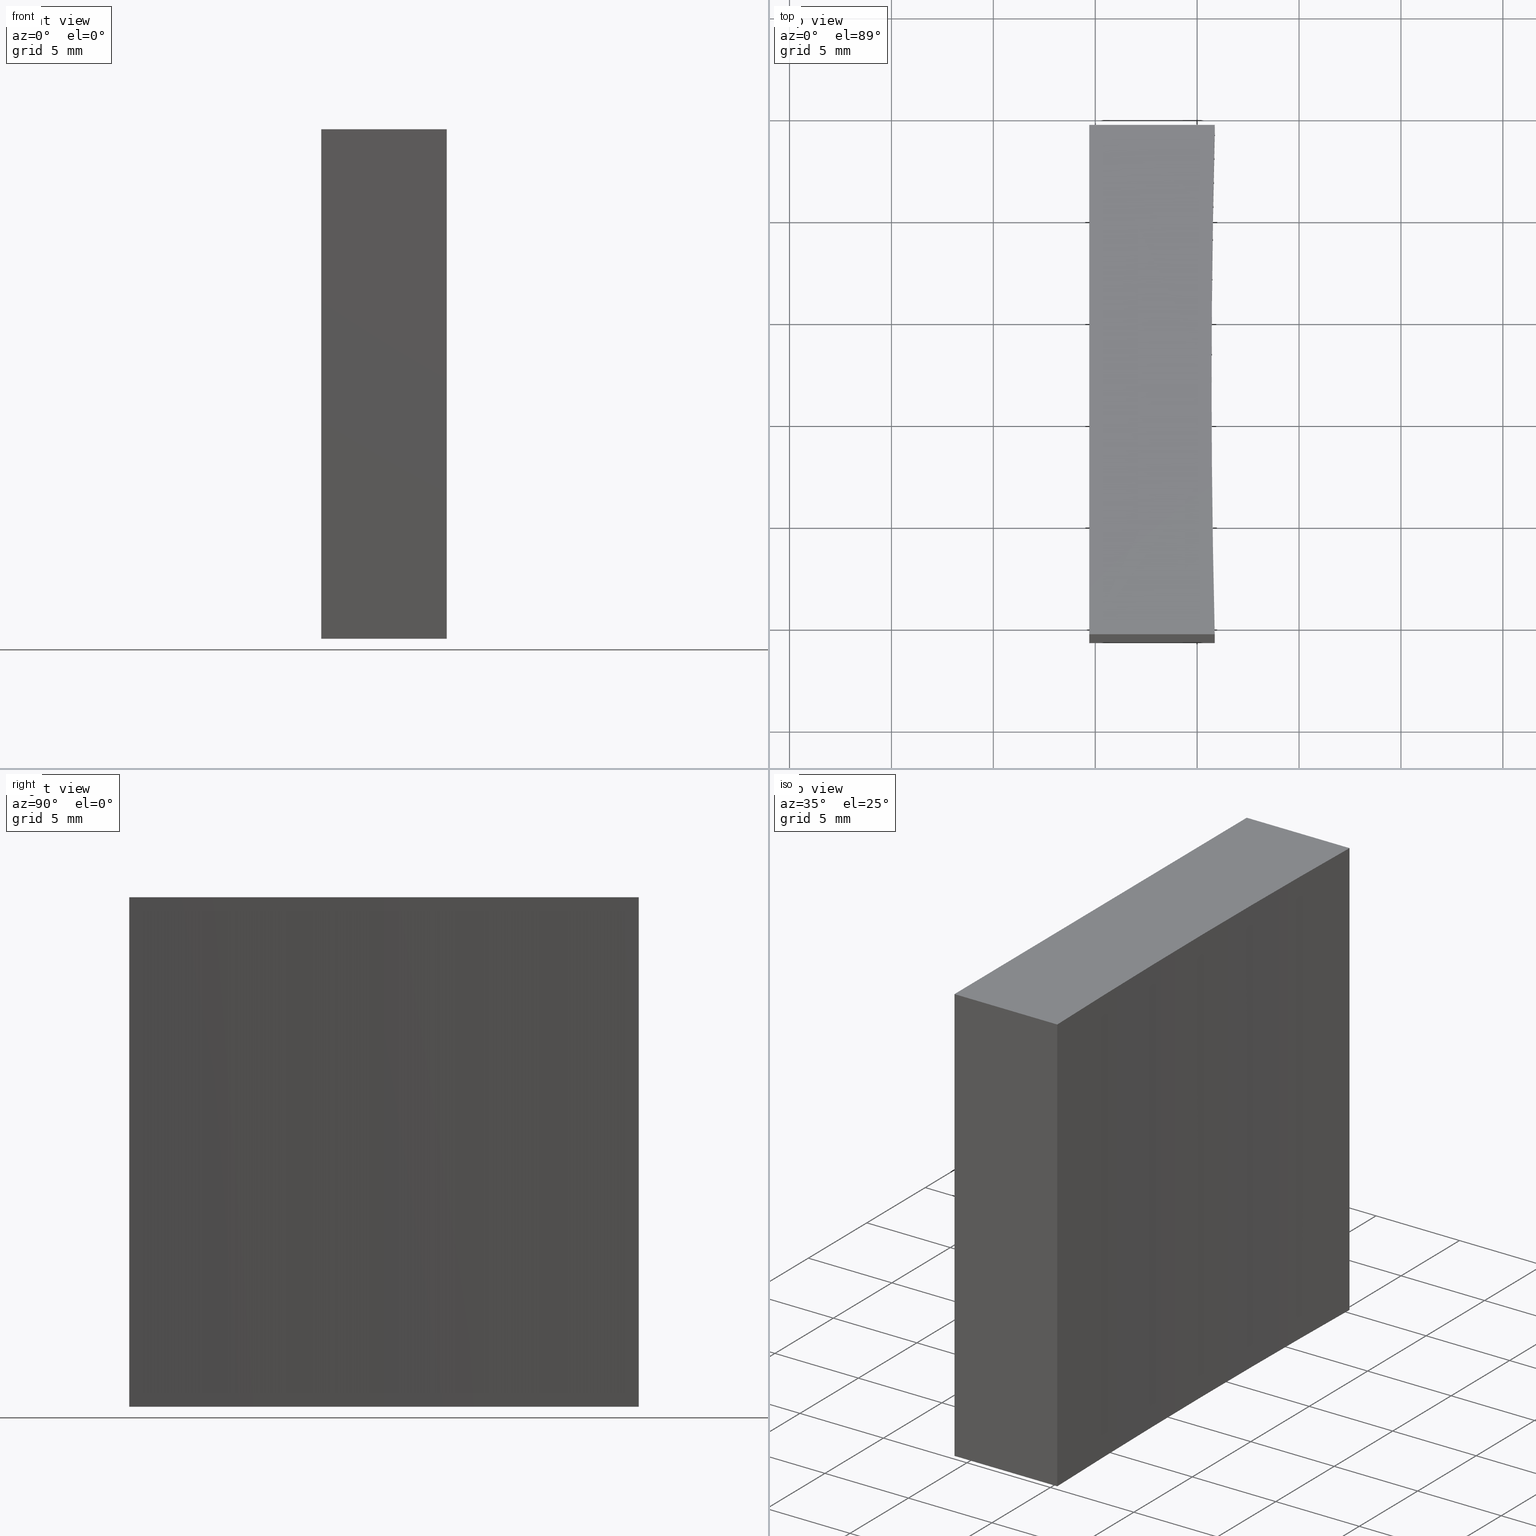
[diagram: canonical four-view strip — front | top / right | iso, engineering-drawing reading convention]
A machine part, canonical four-view strip (front | top / right | iso — engineering-drawing reading convention). The complete STEP part file that produces these views, byte-faithful:
ISO-10303-21;
HEADER;
FILE_DESCRIPTION (( 'STEP AP214' ),
    '1' );
FILE_NAME ('280021.STEP',
    '2019-08-08T03:10:16',
    ( '' ),
    ( '' ),
    'SwSTEP 2.0',
    'SolidWorks 2016',
    '' );
FILE_SCHEMA (( 'AUTOMOTIVE_DESIGN' ));
ENDSEC;

DATA;
#1 = APPLICATION_CONTEXT ( 'automotive_design' ) ;
#2 = LINE ( 'NONE', #37, #69 ) ;
#3 = AXIS2_PLACEMENT_3D ( 'NONE', #155, #238, #158 ) ;
#4 = ORIENTED_EDGE ( 'NONE', *, *, #98, .T. ) ;
#5 = VECTOR ( 'NONE', #186, 1000.000000000000000 ) ;
#6 = VECTOR ( 'NONE', #162, 1000.000000000000000 ) ;
#7 = EDGE_CURVE ( 'NONE', #27, #182, #105, .T. ) ;
#8 = ORIENTED_EDGE ( 'NONE', *, *, #184, .F. ) ;
#9 = STYLED_ITEM ( 'NONE', ( #166 ), #22 ) ;
#10 = LINE ( 'NONE', #106, #112 ) ;
#11 = CARTESIAN_POINT ( 'NONE',  ( 284.7071356312820900, 79.35792926776707600, 25.00000000000000000 ) ) ;
#12 = DIRECTION ( 'NONE',  ( -1.000000000000000000, -4.621214570823221300E-014, 0.0000000000000000000 ) ) ;
#13 = UNCERTAINTY_MEASURE_WITH_UNIT (LENGTH_MEASURE( 1.000000000000000100E-005 ), #43, 'distance_accuracy_value', 'NONE');
#14 = EDGE_CURVE ( 'NONE', #182, #213, #148, .T. ) ;
#15 = SURFACE_STYLE_USAGE ( .BOTH. , #70 ) ;
#16 = SURFACE_STYLE_FILL_AREA ( #127 ) ;
#17 = CARTESIAN_POINT ( 'NONE',  ( 790.7071356197045600, 66.85792926776608200, 25.00000000000000000 ) ) ;
#18 = DIRECTION ( 'NONE',  ( -1.000000000000000000, 0.0000000000000000000, 0.0000000000000000000 ) ) ;
#19 = ORIENTED_EDGE ( 'NONE', *, *, #233, .F. ) ;
#20 = CARTESIAN_POINT ( 'NONE',  ( 290.8634100413992800, 54.35792926776753800, 25.00000000000000000 ) ) ;
#21 = STYLED_ITEM ( 'NONE', ( #198 ), #48 ) ;
#22 = ADVANCED_BREP_SHAPE_REPRESENTATION ( '280021', ( #48, #203 ), #90 ) ;
#23 = ORIENTED_EDGE ( 'NONE', *, *, #56, .T. ) ;
#24 = VERTEX_POINT ( 'NONE', #170 ) ;
#25 = EDGE_CURVE ( 'NONE', #135, #199, #120, .T. ) ;
#26 = COLOUR_RGB ( '',1.000000000000000000, 1.000000000000000000, 1.000000000000000000 ) ;
#27 = VERTEX_POINT ( 'NONE', #104 ) ;
#28 = PRODUCT_DEFINITION_FORMATION_WITH_SPECIFIED_SOURCE ( '�κ�', '', #132, .NOT_KNOWN. ) ;
#29 = LINE ( 'NONE', #145, #97 ) ;
#30 = VERTEX_POINT ( 'NONE', #11 ) ;
#31 = VERTEX_POINT ( 'NONE', #71 ) ;
#32 = CARTESIAN_POINT ( 'NONE',  ( 290.8634100413993300, 79.35792926776707600, 25.00000000000000000 ) ) ;
#33 = CARTESIAN_POINT ( 'NONE',  ( 284.7071356312820900, 79.35792926776707600, 25.00000000000000000 ) ) ;
#34 = DIRECTION ( 'NONE',  ( -1.000000000000000000, -0.0000000000000000000, -0.0000000000000000000 ) ) ;
#35 = ADVANCED_FACE ( 'NONE', ( #175 ), #171, .F. ) ;
#36 = CYLINDRICAL_SURFACE ( 'NONE', #44, 500.0000000000001100 ) ;
#37 = CARTESIAN_POINT ( 'NONE',  ( 284.7071356312820900, 54.35792926776707600, 25.00000000000000000 ) ) ;
#38 = ORIENTED_EDGE ( 'NONE', *, *, #233, .T. ) ;
#39 = ADVANCED_FACE ( 'NONE', ( #206 ), #172, .T. ) ;
#40 = CARTESIAN_POINT ( 'NONE',  ( 284.7071356312820900, 66.85792926776707600, 0.0000000000000000000 ) ) ;
#41 = FILL_AREA_STYLE_COLOUR ( '', #26 ) ;
#42 = DIRECTION ( 'NONE',  ( -0.0000000000000000000, -0.0000000000000000000, -1.000000000000000000 ) ) ;
#43 =( LENGTH_UNIT ( ) NAMED_UNIT ( * ) SI_UNIT ( .MILLI., .METRE. ) );
#44 = AXIS2_PLACEMENT_3D ( 'NONE', #237, #129, #107 ) ;
#45 = CARTESIAN_POINT ( 'NONE',  ( 290.8634100413992800, 54.35792926776753800, 0.0000000000000000000 ) ) ;
#46 = APPLICATION_PROTOCOL_DEFINITION ( 'draft international standard', 'automotive_design', 1998, #1 ) ;
#47 = EDGE_LOOP ( 'NONE', ( #207, #8, #51, #23 ) ) ;
#48 = MANIFOLD_SOLID_BREP ( '͹̨-����1', #204 ) ;
#49 = EDGE_CURVE ( 'NONE', #199, #102, #134, .T. ) ;
#50 = PRODUCT_RELATED_PRODUCT_CATEGORY ( 'part', '', ( #132 ) ) ;
#51 = ORIENTED_EDGE ( 'NONE', *, *, #92, .F. ) ;
#52 = PRESENTATION_LAYER_ASSIGNMENT (  '', '', ( #9 ) ) ;
#53 = EDGE_CURVE ( 'NONE', #102, #30, #117, .T. ) ;
#54 = ORIENTED_EDGE ( 'NONE', *, *, #14, .F. ) ;
#55 = CARTESIAN_POINT ( 'NONE',  ( 290.8634100413992800, 54.35792926776736100, 0.0000000000000000000 ) ) ;
#56 = EDGE_CURVE ( 'NONE', #31, #27, #2, .T. ) ;
#57 = DIRECTION ( 'NONE',  ( -0.0000000000000000000, -0.0000000000000000000, -1.000000000000000000 ) ) ;
#58 = LINE ( 'NONE', #40, #159 ) ;
#59 = ADVANCED_FACE ( 'NONE', ( #100 ), #236, .F. ) ;
#60 = DIRECTION ( 'NONE',  ( -0.0000000000000000000, -0.0000000000000000000, -1.000000000000000000 ) ) ;
#61 = CARTESIAN_POINT ( 'NONE',  ( 790.7071356197045600, 66.85792926776608200, 25.00000000000000000 ) ) ;
#62 = SURFACE_SIDE_STYLE ('',( #212 ) ) ;
#63 = ORIENTED_EDGE ( 'NONE', *, *, #98, .F. ) ;
#64 = CARTESIAN_POINT ( 'NONE',  ( 290.7071356197043900, 66.85792926776608200, 25.00000000000000000 ) ) ;
#65 = UNCERTAINTY_MEASURE_WITH_UNIT (LENGTH_MEASURE( 1.000000000000000100E-005 ), #146, 'distance_accuracy_value', 'NONE');
#66 = SURFACE_STYLE_USAGE ( .BOTH. , #62 ) ;
#67 = ORIENTED_EDGE ( 'NONE', *, *, #223, .F. ) ;
#68 = FACE_OUTER_BOUND ( 'NONE', #99, .T. ) ;
#69 = VECTOR ( 'NONE', #57, 1000.000000000000000 ) ;
#70 = SURFACE_SIDE_STYLE ('',( #16 ) ) ;
#71 = CARTESIAN_POINT ( 'NONE',  ( 284.7071356312820900, 54.35792926776707600, 25.00000000000000000 ) ) ;
#72 = VECTOR ( 'NONE', #34, 1000.000000000000000 ) ;
#73 = CARTESIAN_POINT ( 'NONE',  ( 790.7071356197045600, 66.85792926776608200, 25.00000000000000000 ) ) ;
#74 = CARTESIAN_POINT ( 'NONE',  ( 284.7071356312820900, 79.35792926776707600, 25.00000000000000000 ) ) ;
#75 = AXIS2_PLACEMENT_3D ( 'NONE', #33, #140, #111 ) ;
#76 = EDGE_CURVE ( 'NONE', #24, #156, #101, .T. ) ;
#77 = DIRECTION ( 'NONE',  ( -0.0000000000000000000, -1.000000000000000000, -0.0000000000000000000 ) ) ;
#78 = ORIENTED_EDGE ( 'NONE', *, *, #197, .F. ) ;
#79 = DIRECTION ( 'NONE',  ( -1.000000000000000000, -0.0000000000000000000, -0.0000000000000000000 ) ) ;
#80 = ADVANCED_FACE ( 'NONE', ( #108 ), #36, .F. ) ;
#81 = CARTESIAN_POINT ( 'NONE',  ( 0.0000000000000000000, 0.0000000000000000000, 0.0000000000000000000 ) ) ;
#82 = PRESENTATION_LAYER_ASSIGNMENT (  '', '', ( #21 ) ) ;
#83 = DIRECTION ( 'NONE',  ( -0.0000000000000000000, -0.0000000000000000000, -1.000000000000000000 ) ) ;
#84 = EDGE_LOOP ( 'NONE', ( #235, #38, #122, #189 ) ) ;
#85 = AXIS2_PLACEMENT_3D ( 'NONE', #61, #142, #18 ) ;
#86 = EDGE_CURVE ( 'NONE', #30, #31, #149, .T. ) ;
#87 = FACE_OUTER_BOUND ( 'NONE', #202, .T. ) ;
#88 = DIRECTION ( 'NONE',  ( -0.0000000000000000000, -0.0000000000000000000, -1.000000000000000000 ) ) ;
#89 = DIRECTION ( 'NONE',  ( 1.000000000000000000, 0.0000000000000000000, 0.0000000000000000000 ) ) ;
#90 =( GEOMETRIC_REPRESENTATION_CONTEXT ( 3 ) GLOBAL_UNCERTAINTY_ASSIGNED_CONTEXT ( ( #65 ) ) GLOBAL_UNIT_ASSIGNED_CONTEXT ( ( #146, #144, #94 ) ) REPRESENTATION_CONTEXT ( 'NONE', 'WORKASPACE' ) );
#91 = DIRECTION ( 'NONE',  ( 0.0000000000000000000, 0.0000000000000000000, 1.000000000000000000 ) ) ;
#92 = EDGE_CURVE ( 'NONE', #31, #135, #10, .T. ) ;
#93 = CIRCLE ( 'NONE', #187, 500.0000000000001100 ) ;
#94 =( NAMED_UNIT ( * ) SI_UNIT ( $, .STERADIAN. ) SOLID_ANGLE_UNIT ( ) );
#95 = ADVANCED_FACE ( 'NONE', ( #68 ), #143, .F. ) ;
#96 = PRODUCT_DEFINITION ( 'δ֪', '', #28, #225 ) ;
#97 = VECTOR ( 'NONE', #42, 1000.000000000000000 ) ;
#98 = EDGE_CURVE ( 'NONE', #156, #27, #58, .T. ) ;
#99 = EDGE_LOOP ( 'NONE', ( #150, #63, #128, #78, #54 ) ) ;
#100 = FACE_OUTER_BOUND ( 'NONE', #167, .T. ) ;
#101 = LINE ( 'NONE', #190, #72 ) ;
#102 = VERTEX_POINT ( 'NONE', #32 ) ;
#103 =( NAMED_UNIT ( * ) PLANE_ANGLE_UNIT ( ) SI_UNIT ( $, .RADIAN. ) );
#104 = CARTESIAN_POINT ( 'NONE',  ( 284.7071356312820900, 54.35792926776707600, 0.0000000000000000000 ) ) ;
#105 = LINE ( 'NONE', #55, #5 ) ;
#106 = CARTESIAN_POINT ( 'NONE',  ( 290.8634100413992800, 54.35792926776736100, 25.00000000000000000 ) ) ;
#107 = DIRECTION ( 'NONE',  ( -1.000000000000000000, 0.0000000000000000000, 0.0000000000000000000 ) ) ;
#108 = FACE_OUTER_BOUND ( 'NONE', #131, .T. ) ;
#109 = ORIENTED_EDGE ( 'NONE', *, *, #86, .F. ) ;
#110 = PLANE ( 'NONE',  #3 ) ;
#111 = DIRECTION ( 'NONE',  ( 0.0000000000000000000, -0.0000000000000000000, -1.000000000000000000 ) ) ;
#112 = VECTOR ( 'NONE', #230, 1000.000000000000000 ) ;
#113 = ORIENTED_EDGE ( 'NONE', *, *, #53, .F. ) ;
#114 = CARTESIAN_POINT ( 'NONE',  ( 290.7071356197043900, 66.85792926776608200, 25.00000000000000000 ) ) ;
#115 =( GEOMETRIC_REPRESENTATION_CONTEXT ( 3 ) GLOBAL_UNCERTAINTY_ASSIGNED_CONTEXT ( ( #13 ) ) GLOBAL_UNIT_ASSIGNED_CONTEXT ( ( #43, #160, #219 ) ) REPRESENTATION_CONTEXT ( 'NONE', 'WORKASPACE' ) );
#116 = DIRECTION ( 'NONE',  ( 0.0000000000000000000, 0.0000000000000000000, 1.000000000000000000 ) ) ;
#117 = LINE ( 'NONE', #74, #224 ) ;
#118 = ORIENTED_EDGE ( 'NONE', *, *, #184, .T. ) ;
#119 = COLOUR_RGB ( '',1.000000000000000000, 1.000000000000000000, 1.000000000000000000 ) ;
#120 = CIRCLE ( 'NONE', #228, 500.0000000000001100 ) ;
#121 = VECTOR ( 'NONE', #83, 1000.000000000000000 ) ;
#122 = ORIENTED_EDGE ( 'NONE', *, *, #197, .T. ) ;
#123 =( NAMED_UNIT ( * ) SI_UNIT ( $, .STERADIAN. ) SOLID_ANGLE_UNIT ( ) );
#124 = VECTOR ( 'NONE', #215, 1000.000000000000000 ) ;
#125 = ORIENTED_EDGE ( 'NONE', *, *, #210, .T. ) ;
#126 = AXIS2_PLACEMENT_3D ( 'NONE', #174, #232, #157 ) ;
#127 = FILL_AREA_STYLE ('',( #154 ) ) ;
#128 = ORIENTED_EDGE ( 'NONE', *, *, #76, .F. ) ;
#129 = DIRECTION ( 'NONE',  ( -0.0000000000000000000, -0.0000000000000000000, -1.000000000000000000 ) ) ;
#130 = ADVANCED_FACE ( 'NONE', ( #181 ), #201, .F. ) ;
#131 = EDGE_LOOP ( 'NONE', ( #19, #221, #118, #141 ) ) ;
#132 = PRODUCT ( '280021', '280021', '', ( #196 ) ) ;
#133 = ORIENTED_EDGE ( 'NONE', *, *, #49, .T. ) ;
#134 = CIRCLE ( 'NONE', #208, 500.0000000000001100 ) ;
#135 = VERTEX_POINT ( 'NONE', #216 ) ;
#136 =( GEOMETRIC_REPRESENTATION_CONTEXT ( 3 ) GLOBAL_UNCERTAINTY_ASSIGNED_CONTEXT ( ( #231 ) ) GLOBAL_UNIT_ASSIGNED_CONTEXT ( ( #183, #103, #123 ) ) REPRESENTATION_CONTEXT ( 'NONE', 'WORKASPACE' ) );
#137 = DIRECTION ( 'NONE',  ( -0.0000000000000000000, -0.0000000000000000000, -1.000000000000000000 ) ) ;
#138 = AXIS2_PLACEMENT_3D ( 'NONE', #73, #91, #211 ) ;
#139 = LINE ( 'NONE', #220, #121 ) ;
#140 = DIRECTION ( 'NONE',  ( 0.0000000000000000000, -1.000000000000000000, 0.0000000000000000000 ) ) ;
#141 = ORIENTED_EDGE ( 'NONE', *, *, #14, .T. ) ;
#142 = DIRECTION ( 'NONE',  ( -0.0000000000000000000, -0.0000000000000000000, -1.000000000000000000 ) ) ;
#143 = PLANE ( 'NONE',  #126 ) ;
#144 =( NAMED_UNIT ( * ) PLANE_ANGLE_UNIT ( ) SI_UNIT ( $, .RADIAN. ) );
#145 = CARTESIAN_POINT ( 'NONE',  ( 290.8634100413993300, 79.35792926776707600, 25.00000000000000000 ) ) ;
#146 =( LENGTH_UNIT ( ) NAMED_UNIT ( * ) SI_UNIT ( .MILLI., .METRE. ) );
#147 = DIRECTION ( 'NONE',  ( -0.0000000000000000000, -0.0000000000000000000, -1.000000000000000000 ) ) ;
#148 = CIRCLE ( 'NONE', #151, 500.0000000000001100 ) ;
#149 = LINE ( 'NONE', #188, #124 ) ;
#150 = ORIENTED_EDGE ( 'NONE', *, *, #7, .F. ) ;
#151 = AXIS2_PLACEMENT_3D ( 'NONE', #209, #88, #205 ) ;
#152 = SHAPE_DEFINITION_REPRESENTATION ( #179, #22 ) ;
#153 = ORIENTED_EDGE ( 'NONE', *, *, #76, .T. ) ;
#154 = FILL_AREA_STYLE_COLOUR ( '', #119 ) ;
#155 = CARTESIAN_POINT ( 'NONE',  ( 284.7071356312820900, 66.85792926776707600, 25.00000000000000000 ) ) ;
#156 = VERTEX_POINT ( 'NONE', #193 ) ;
#157 = DIRECTION ( 'NONE',  ( 1.000000000000000000, 0.0000000000000000000, -0.0000000000000000000 ) ) ;
#158 = DIRECTION ( 'NONE',  ( 0.0000000000000000000, 0.0000000000000000000, -1.000000000000000000 ) ) ;
#159 = VECTOR ( 'NONE', #77, 1000.000000000000000 ) ;
#160 =( NAMED_UNIT ( * ) PLANE_ANGLE_UNIT ( ) SI_UNIT ( $, .RADIAN. ) );
#161 = ORIENTED_EDGE ( 'NONE', *, *, #223, .T. ) ;
#162 = DIRECTION ( 'NONE',  ( -0.0000000000000000000, -0.0000000000000000000, -1.000000000000000000 ) ) ;
#163 = APPLICATION_PROTOCOL_DEFINITION ( 'draft international standard', 'automotive_design', 1998, #239 ) ;
#164 = ADVANCED_FACE ( 'NONE', ( #87 ), #110, .F. ) ;
#165 = CARTESIAN_POINT ( 'NONE',  ( 790.7071356197045600, 66.85792926776608200, 0.0000000000000000000 ) ) ;
#166 = PRESENTATION_STYLE_ASSIGNMENT (( #66 ) ) ;
#167 = EDGE_LOOP ( 'NONE', ( #153, #67, #113, #125 ) ) ;
#168 = VECTOR ( 'NONE', #177, 1000.000000000000000 ) ;
#169 = CARTESIAN_POINT ( 'NONE',  ( 290.8634100413992800, 54.35792926776736100, 25.00000000000000000 ) ) ;
#170 = CARTESIAN_POINT ( 'NONE',  ( 290.8634100413993300, 79.35792926776707600, 0.0000000000000000000 ) ) ;
#171 = PLANE ( 'NONE',  #226 ) ;
#172 = PLANE ( 'NONE',  #138 ) ;
#173 = EDGE_LOOP ( 'NONE', ( #176, #227, #195, #133, #180 ) ) ;
#174 = CARTESIAN_POINT ( 'NONE',  ( 790.7071356197045600, 66.85792926776608200, 0.0000000000000000000 ) ) ;
#175 = FACE_OUTER_BOUND ( 'NONE', #47, .T. ) ;
#176 = ORIENTED_EDGE ( 'NONE', *, *, #86, .T. ) ;
#177 = DIRECTION ( 'NONE',  ( -0.0000000000000000000, -0.0000000000000000000, -1.000000000000000000 ) ) ;
#178 = DIRECTION ( 'NONE',  ( 1.000000000000000000, 0.0000000000000000000, 0.0000000000000000000 ) ) ;
#179 = PRODUCT_DEFINITION_SHAPE ( 'NONE', 'NONE',  #96 ) ;
#180 = ORIENTED_EDGE ( 'NONE', *, *, #53, .T. ) ;
#181 = FACE_OUTER_BOUND ( 'NONE', #84, .T. ) ;
#182 = VERTEX_POINT ( 'NONE', #45 ) ;
#183 =( LENGTH_UNIT ( ) NAMED_UNIT ( * ) SI_UNIT ( .MILLI., .METRE. ) );
#184 = EDGE_CURVE ( 'NONE', #135, #182, #194, .T. ) ;
#185 = CARTESIAN_POINT ( 'NONE',  ( 790.7071356197045600, 66.85792926776608200, 25.00000000000000000 ) ) ;
#186 = DIRECTION ( 'NONE',  ( 1.000000000000000000, 4.621214570823220700E-014, -0.0000000000000000000 ) ) ;
#187 = AXIS2_PLACEMENT_3D ( 'NONE', #165, #147, #178 ) ;
#188 = CARTESIAN_POINT ( 'NONE',  ( 284.7071356312820900, 54.35792926776707600, 25.00000000000000000 ) ) ;
#189 = ORIENTED_EDGE ( 'NONE', *, *, #210, .F. ) ;
#190 = CARTESIAN_POINT ( 'NONE',  ( 284.7071356312820900, 79.35792926776707600, 0.0000000000000000000 ) ) ;
#191 = MECHANICAL_DESIGN_GEOMETRIC_PRESENTATION_REPRESENTATION (  '', ( #21 ), #136 ) ;
#192 = FILL_AREA_STYLE ('',( #41 ) ) ;
#193 = CARTESIAN_POINT ( 'NONE',  ( 284.7071356312820900, 79.35792926776707600, 0.0000000000000000000 ) ) ;
#194 = LINE ( 'NONE', #20, #6 ) ;
#195 = ORIENTED_EDGE ( 'NONE', *, *, #25, .T. ) ;
#196 = PRODUCT_CONTEXT ( 'NONE', #239, 'mechanical' ) ;
#197 = EDGE_CURVE ( 'NONE', #213, #24, #93, .T. ) ;
#198 = PRESENTATION_STYLE_ASSIGNMENT (( #15 ) ) ;
#199 = VERTEX_POINT ( 'NONE', #114 ) ;
#200 = MECHANICAL_DESIGN_GEOMETRIC_PRESENTATION_REPRESENTATION (  '', ( #9 ), #115 ) ;
#201 = CYLINDRICAL_SURFACE ( 'NONE', #85, 500.0000000000001100 ) ;
#202 = EDGE_LOOP ( 'NONE', ( #4, #218, #109, #161 ) ) ;
#203 = AXIS2_PLACEMENT_3D ( 'NONE', #81, #116, #222 ) ;
#204 = CLOSED_SHELL ( 'NONE', ( #130, #35, #80, #59, #164, #39, #95 ) ) ;
#205 = DIRECTION ( 'NONE',  ( 1.000000000000000000, 0.0000000000000000000, 0.0000000000000000000 ) ) ;
#206 = FACE_OUTER_BOUND ( 'NONE', #173, .T. ) ;
#207 = ORIENTED_EDGE ( 'NONE', *, *, #7, .T. ) ;
#208 = AXIS2_PLACEMENT_3D ( 'NONE', #17, #60, #217 ) ;
#209 = CARTESIAN_POINT ( 'NONE',  ( 790.7071356197045600, 66.85792926776608200, 0.0000000000000000000 ) ) ;
#210 = EDGE_CURVE ( 'NONE', #102, #24, #29, .T. ) ;
#211 = DIRECTION ( 'NONE',  ( 1.000000000000000000, 0.0000000000000000000, -0.0000000000000000000 ) ) ;
#212 = SURFACE_STYLE_FILL_AREA ( #192 ) ;
#213 = VERTEX_POINT ( 'NONE', #214 ) ;
#214 = CARTESIAN_POINT ( 'NONE',  ( 290.7071356197043900, 66.85792926776608200, 0.0000000000000000000 ) ) ;
#215 = DIRECTION ( 'NONE',  ( -0.0000000000000000000, -1.000000000000000000, -0.0000000000000000000 ) ) ;
#216 = CARTESIAN_POINT ( 'NONE',  ( 290.8634100413992800, 54.35792926776753800, 25.00000000000000000 ) ) ;
#217 = DIRECTION ( 'NONE',  ( 1.000000000000000000, 0.0000000000000000000, 0.0000000000000000000 ) ) ;
#218 = ORIENTED_EDGE ( 'NONE', *, *, #56, .F. ) ;
#219 =( NAMED_UNIT ( * ) SI_UNIT ( $, .STERADIAN. ) SOLID_ANGLE_UNIT ( ) );
#220 = CARTESIAN_POINT ( 'NONE',  ( 284.7071356312820900, 79.35792926776707600, 25.00000000000000000 ) ) ;
#221 = ORIENTED_EDGE ( 'NONE', *, *, #25, .F. ) ;
#222 = DIRECTION ( 'NONE',  ( 1.000000000000000000, 0.0000000000000000000, 0.0000000000000000000 ) ) ;
#223 = EDGE_CURVE ( 'NONE', #30, #156, #139, .T. ) ;
#224 = VECTOR ( 'NONE', #79, 1000.000000000000000 ) ;
#225 = PRODUCT_DEFINITION_CONTEXT ( 'detailed design', #1, 'design' ) ;
#226 = AXIS2_PLACEMENT_3D ( 'NONE', #169, #229, #12 ) ;
#227 = ORIENTED_EDGE ( 'NONE', *, *, #92, .T. ) ;
#228 = AXIS2_PLACEMENT_3D ( 'NONE', #185, #137, #89 ) ;
#229 = DIRECTION ( 'NONE',  ( -4.621214570823221300E-014, 1.000000000000000000, 0.0000000000000000000 ) ) ;
#230 = DIRECTION ( 'NONE',  ( 1.000000000000000000, 4.621214570823220700E-014, -0.0000000000000000000 ) ) ;
#231 = UNCERTAINTY_MEASURE_WITH_UNIT (LENGTH_MEASURE( 1.000000000000000100E-005 ), #183, 'distance_accuracy_value', 'NONE');
#232 = DIRECTION ( 'NONE',  ( 0.0000000000000000000, 0.0000000000000000000, 1.000000000000000000 ) ) ;
#233 = EDGE_CURVE ( 'NONE', #199, #213, #234, .T. ) ;
#234 = LINE ( 'NONE', #64, #168 ) ;
#235 = ORIENTED_EDGE ( 'NONE', *, *, #49, .F. ) ;
#236 = PLANE ( 'NONE',  #75 ) ;
#237 = CARTESIAN_POINT ( 'NONE',  ( 790.7071356197045600, 66.85792926776608200, 25.00000000000000000 ) ) ;
#238 = DIRECTION ( 'NONE',  ( 1.000000000000000000, 0.0000000000000000000, 0.0000000000000000000 ) ) ;
#239 = APPLICATION_CONTEXT ( 'automotive_design' ) ;
ENDSEC;
END-ISO-10303-21;
